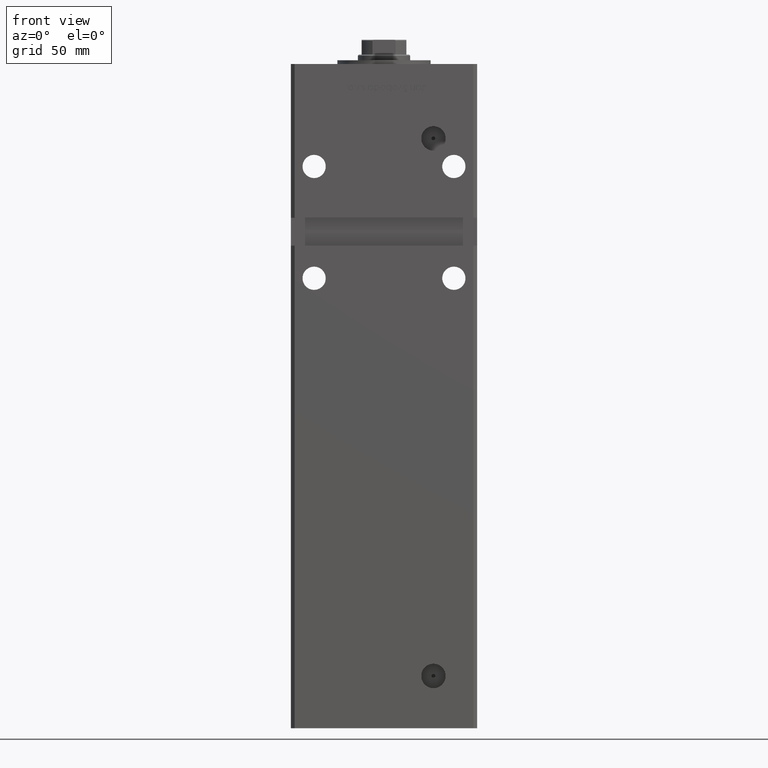
[diagram: clean part render]
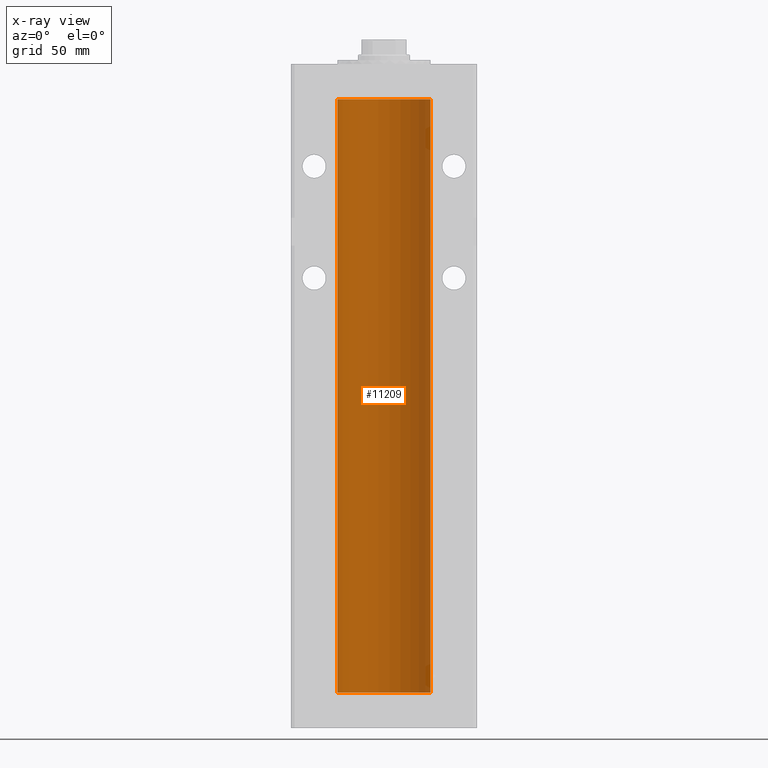
[diagram: x-ray — body ghosted, one internal face saturated and labeled with its STEP entity id]
A machine part, front view, then the same camera in x-ray: the body is ghosted and one INTERNAL B-rep face — a face not visible from any outside direction — is saturated and labeled: STEP entity #11209.
In plain terms, the highlighted cylindrical surface (partial cylindrical patch) has radius 25 mm, axis along (-0, -0, -1).
Its self-contained STEP definition (entity closure, byte-faithful):
#1166 = AXIS2_PLACEMENT_3D ( 'NONE', #30626, #42991, #5659 ) ;
#1979 = EDGE_CURVE ( 'NONE', #19756, #22910, #14292, .T. ) ;
#2871 = DIRECTION ( 'NONE',  ( -1.000000000000000000, 0.000000000000000000, 0.000000000000000000 ) ) ;
#5659 = DIRECTION ( 'NONE',  ( 1.000000000000000000, 0.000000000000000000, 0.000000000000000000 ) ) ;
#11209 = ADVANCED_FACE ( 'NONE', ( #23282 ), #35390, .F. ) ;
#11435 = DIRECTION ( 'NONE',  ( -0.000000000000000000, -0.000000000000000000, -1.000000000000000000 ) ) ;
#11469 = AXIS2_PLACEMENT_3D ( 'NONE', #19280, #48291, #27872 ) ;
#14292 = LINE ( 'NONE', #23382, #43639 ) ;
#14974 = VECTOR ( 'NONE', #11435, 1000.000000000000000 ) ;
#15761 = CIRCLE ( 'NONE', #11469, 25.00000000000000000 ) ;
#17746 = ORIENTED_EDGE ( 'NONE', *, *, #22412, .F. ) ;
#19280 = CARTESIAN_POINT ( 'NONE',  ( 0.000000000000000000, 0.000000000000000000, 318.5000000000000000 ) ) ;
#19756 = VERTEX_POINT ( 'NONE', #27583 ) ;
#20987 = VERTEX_POINT ( 'NONE', #49006 ) ;
#21366 = EDGE_CURVE ( 'NONE', #20987, #19756, #15761, .T. ) ;
#21527 = CARTESIAN_POINT ( 'NONE',  ( -25.00000000000000000, 0.000000000000000000, 0.000000000000000000 ) ) ;
#22412 = EDGE_CURVE ( 'NONE', #20987, #37174, #44216, .T. ) ;
#22910 = VERTEX_POINT ( 'NONE', #21527 ) ;
#23282 = FACE_OUTER_BOUND ( 'NONE', #43406, .T. ) ;
#23382 = CARTESIAN_POINT ( 'NONE',  ( -25.00000000000000000, 0.000000000000000000, 318.5000000000000000 ) ) ;
#23686 = ORIENTED_EDGE ( 'NONE', *, *, #21366, .T. ) ;
#25634 = DIRECTION ( 'NONE',  ( -0.000000000000000000, -0.000000000000000000, -1.000000000000000000 ) ) ;
#26194 = CIRCLE ( 'NONE', #1166, 25.00000000000000000 ) ;
#27583 = CARTESIAN_POINT ( 'NONE',  ( -25.00000000000000000, 0.000000000000000000, 318.5000000000000000 ) ) ;
#27872 = DIRECTION ( 'NONE',  ( 1.000000000000000000, 0.000000000000000000, 0.000000000000000000 ) ) ;
#30626 = CARTESIAN_POINT ( 'NONE',  ( 0.000000000000000000, 0.000000000000000000, 0.000000000000000000 ) ) ;
#30932 = AXIS2_PLACEMENT_3D ( 'NONE', #43729, #39678, #2871 ) ;
#35390 = CYLINDRICAL_SURFACE ( 'NONE', #30932, 25.00000000000000000 ) ;
#36016 = EDGE_CURVE ( 'NONE', #37174, #22910, #26194, .T. ) ;
#37174 = VERTEX_POINT ( 'NONE', #40334 ) ;
#39678 = DIRECTION ( 'NONE',  ( -0.000000000000000000, -0.000000000000000000, -1.000000000000000000 ) ) ;
#40334 = CARTESIAN_POINT ( 'NONE',  ( 25.00000000000000000, 3.061616997868383043E-15, 0.000000000000000000 ) ) ;
#42991 = DIRECTION ( 'NONE',  ( -0.000000000000000000, 0.000000000000000000, 1.000000000000000000 ) ) ;
#43107 = ORIENTED_EDGE ( 'NONE', *, *, #1979, .T. ) ;
#43406 = EDGE_LOOP ( 'NONE', ( #17746, #23686, #43107, #50215 ) ) ;
#43639 = VECTOR ( 'NONE', #25634, 1000.000000000000000 ) ;
#43729 = CARTESIAN_POINT ( 'NONE',  ( 0.000000000000000000, 0.000000000000000000, 318.5000000000000000 ) ) ;
#44216 = LINE ( 'NONE', #47451, #14974 ) ;
#47451 = CARTESIAN_POINT ( 'NONE',  ( 25.00000000000000000, 3.061616997868383043E-15, 318.5000000000000000 ) ) ;
#48291 = DIRECTION ( 'NONE',  ( -0.000000000000000000, 0.000000000000000000, 1.000000000000000000 ) ) ;
#49006 = CARTESIAN_POINT ( 'NONE',  ( 25.00000000000000000, 3.061616997868383043E-15, 318.5000000000000000 ) ) ;
#50215 = ORIENTED_EDGE ( 'NONE', *, *, #36016, .F. ) ;